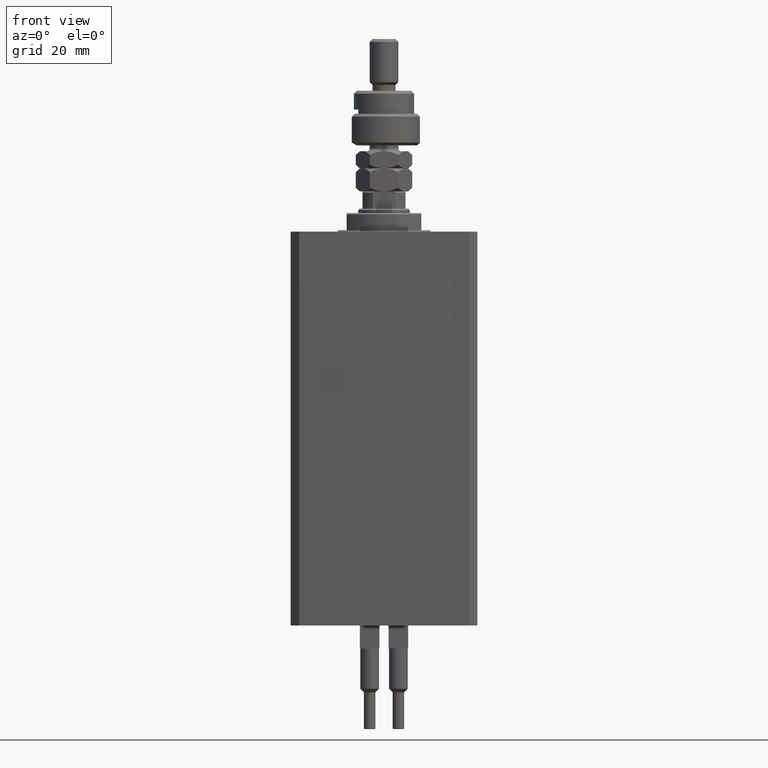
[diagram: clean part render]
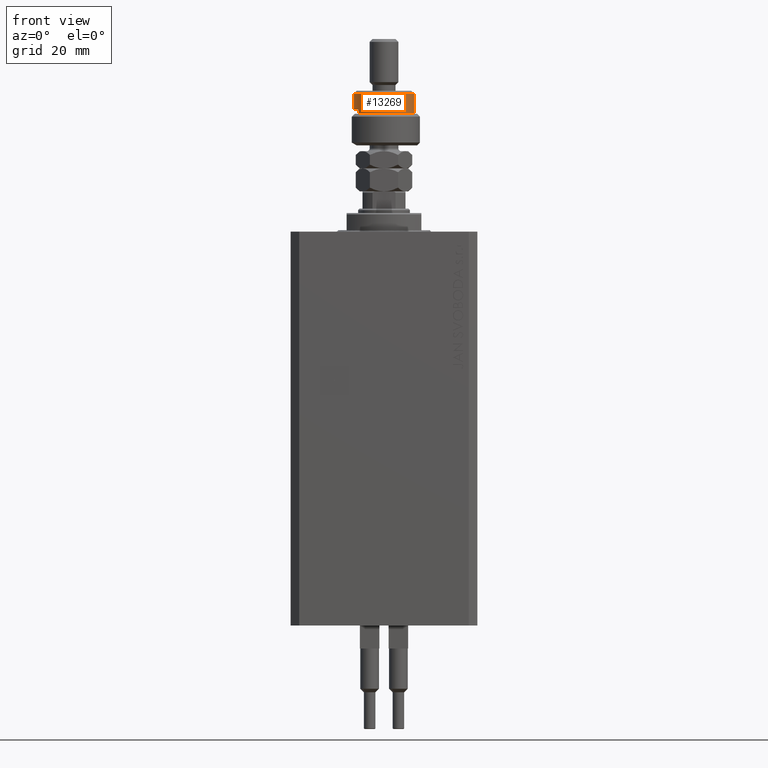
[diagram: same view with one face highlighted and labeled with its STEP entity id]
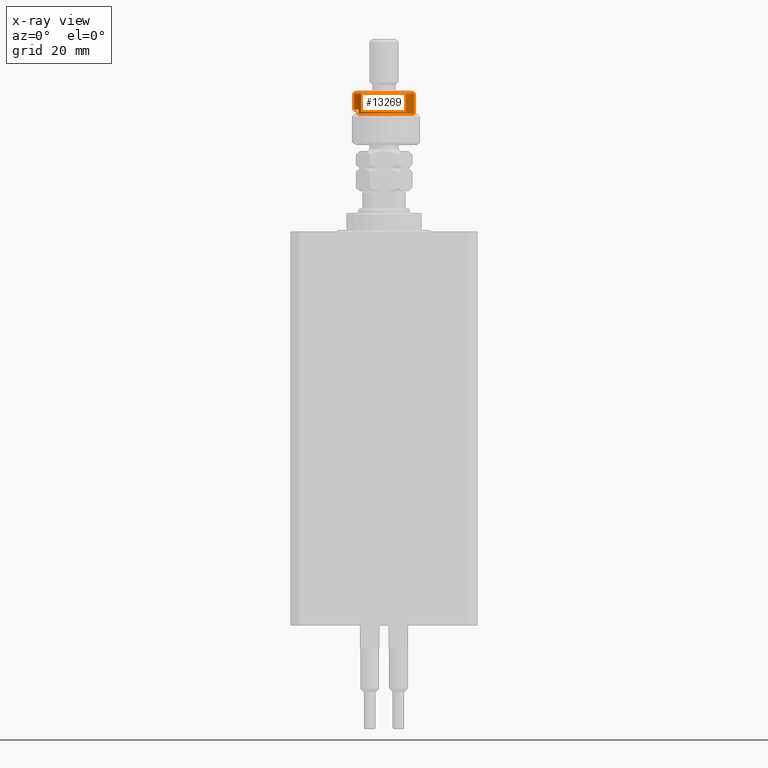
[diagram: x-ray of the same camera — body ghosted, the highlighted face saturated]
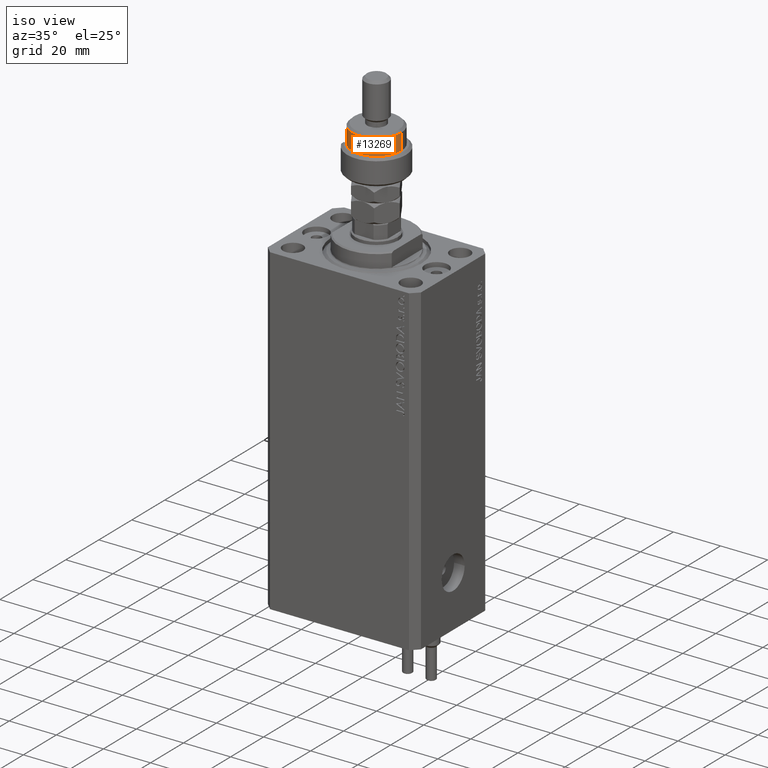
[diagram: same view with one face highlighted and labeled with its STEP entity id]
A machine part, front view. The second image highlights one B-rep face of the part: STEP entity #13269.
The next image is the same camera in x-ray: the body ghosted, the highlighted face saturated — about 0% of this face is hidden behind the body in this view.
A second angle (iso view) of the same face is appended — the face is thin or edge-on in the first view.
In plain terms, the highlighted cylindrical surface (edge-blend (fillet) strip) has radius 10.5 mm, axis along (-0, -0, -1).
Its self-contained STEP definition (entity closure, byte-faithful):
#1364 = EDGE_CURVE ( 'NONE', #11931, #18298, #29788, .T. ) ;
#1395 = CARTESIAN_POINT ( 'NONE',  ( 0.000000000000000000, 0.000000000000000000, 17.99999999999999645 ) ) ;
#1406 = DIRECTION ( 'NONE',  ( -0.000000000000000000, -0.000000000000000000, -1.000000000000000000 ) ) ;
#3277 = CARTESIAN_POINT ( 'NONE',  ( 10.50000000000000000, 1.285879139104720831E-15, 17.99999999999999645 ) ) ;
#4225 = VECTOR ( 'NONE', #20336, 1000.000000000000000 ) ;
#4692 = CARTESIAN_POINT ( 'NONE',  ( -8.944271909999159220, -5.500000000000000000, 11.00000000000000000 ) ) ;
#4777 = DIRECTION ( 'NONE',  ( -1.000000000000000000, 0.000000000000000000, 0.000000000000000000 ) ) ;
#5283 = CARTESIAN_POINT ( 'NONE',  ( 0.000000000000000000, 0.000000000000000000, 19.00000000000000000 ) ) ;
#5617 = ORIENTED_EDGE ( 'NONE', *, *, #16623, .T. ) ;
#5723 = AXIS2_PLACEMENT_3D ( 'NONE', #24765, #39937, #16286 ) ;
#5764 = CARTESIAN_POINT ( 'NONE',  ( -8.944271909999159220, -5.500000000000000000, 19.00000000000000000 ) ) ;
#6688 = DIRECTION ( 'NONE',  ( 1.000000000000000000, 0.000000000000000000, 0.000000000000000000 ) ) ;
#7003 = AXIS2_PLACEMENT_3D ( 'NONE', #1395, #28885, #6688 ) ;
#7990 = ORIENTED_EDGE ( 'NONE', *, *, #1364, .F. ) ;
#8831 = EDGE_CURVE ( 'NONE', #33157, #48582, #43752, .T. ) ;
#9781 = CARTESIAN_POINT ( 'NONE',  ( 10.50000000000000000, 1.285879139104720831E-15, 19.00000000000000000 ) ) ;
#11931 = VERTEX_POINT ( 'NONE', #3277 ) ;
#13191 = DIRECTION ( 'NONE',  ( 1.000000000000000000, 0.000000000000000000, 0.000000000000000000 ) ) ;
#13269 = ADVANCED_FACE ( 'NONE', ( #40747 ), #32510, .T. ) ;
#14553 = EDGE_CURVE ( 'NONE', #42847, #18298, #32211, .T. ) ;
#16286 = DIRECTION ( 'NONE',  ( -1.000000000000000000, 0.000000000000000000, 0.000000000000000000 ) ) ;
#16623 = EDGE_CURVE ( 'NONE', #11931, #33157, #25895, .T. ) ;
#17048 = DIRECTION ( 'NONE',  ( 0.000000000000000000, 0.000000000000000000, 1.000000000000000000 ) ) ;
#18298 = VERTEX_POINT ( 'NONE', #36282 ) ;
#20336 = DIRECTION ( 'NONE',  ( -0.000000000000000000, -0.000000000000000000, -1.000000000000000000 ) ) ;
#20717 = DIRECTION ( 'NONE',  ( -0.000000000000000000, -0.000000000000000000, -1.000000000000000000 ) ) ;
#21102 = VECTOR ( 'NONE', #45480, 1000.000000000000000 ) ;
#22619 = EDGE_LOOP ( 'NONE', ( #7990, #5617, #45714, #24760, #40449, #29294 ) ) ;
#23921 = AXIS2_PLACEMENT_3D ( 'NONE', #5283, #20717, #4777 ) ;
#24760 = ORIENTED_EDGE ( 'NONE', *, *, #29492, .F. ) ;
#24765 = CARTESIAN_POINT ( 'NONE',  ( 0.000000000000000000, 0.000000000000000000, 12.50000000000000000 ) ) ;
#25895 = CIRCLE ( 'NONE', #7003, 10.50000000000000000 ) ;
#28885 = DIRECTION ( 'NONE',  ( 0.000000000000000000, 0.000000000000000000, -1.000000000000000000 ) ) ;
#29294 = ORIENTED_EDGE ( 'NONE', *, *, #14553, .T. ) ;
#29492 = EDGE_CURVE ( 'NONE', #44386, #48582, #33580, .T. ) ;
#29788 = LINE ( 'NONE', #9781, #21102 ) ;
#31361 = EDGE_CURVE ( 'NONE', #44386, #42847, #44835, .T. ) ;
#32211 = CIRCLE ( 'NONE', #45366, 10.50000000000000000 ) ;
#32510 = CYLINDRICAL_SURFACE ( 'NONE', #23921, 10.50000000000000000 ) ;
#33157 = VERTEX_POINT ( 'NONE', #45782 ) ;
#33263 = CARTESIAN_POINT ( 'NONE',  ( -8.944271909999159220, -5.500000000000000000, 12.50000000000000000 ) ) ;
#33580 = CIRCLE ( 'NONE', #5723, 10.50000000000000000 ) ;
#36128 = VECTOR ( 'NONE', #1406, 1000.000000000000000 ) ;
#36282 = CARTESIAN_POINT ( 'NONE',  ( 10.50000000000000000, 1.285879139104720831E-15, 11.00000000000000000 ) ) ;
#37954 = CARTESIAN_POINT ( 'NONE',  ( -10.50000000000000000, 0.000000000000000000, 12.50000000000000000 ) ) ;
#39869 = CARTESIAN_POINT ( 'NONE',  ( -10.50000000000000000, 0.000000000000000000, 19.00000000000000000 ) ) ;
#39937 = DIRECTION ( 'NONE',  ( 0.000000000000000000, 0.000000000000000000, -1.000000000000000000 ) ) ;
#40449 = ORIENTED_EDGE ( 'NONE', *, *, #31361, .T. ) ;
#40747 = FACE_OUTER_BOUND ( 'NONE', #22619, .T. ) ;
#42847 = VERTEX_POINT ( 'NONE', #4692 ) ;
#43541 = CARTESIAN_POINT ( 'NONE',  ( 0.000000000000000000, 0.000000000000000000, 11.00000000000000000 ) ) ;
#43752 = LINE ( 'NONE', #39869, #4225 ) ;
#44386 = VERTEX_POINT ( 'NONE', #33263 ) ;
#44835 = LINE ( 'NONE', #5764, #36128 ) ;
#45366 = AXIS2_PLACEMENT_3D ( 'NONE', #43541, #17048, #13191 ) ;
#45480 = DIRECTION ( 'NONE',  ( -0.000000000000000000, -0.000000000000000000, -1.000000000000000000 ) ) ;
#45714 = ORIENTED_EDGE ( 'NONE', *, *, #8831, .T. ) ;
#45782 = CARTESIAN_POINT ( 'NONE',  ( -10.50000000000000000, 0.000000000000000000, 17.99999999999999645 ) ) ;
#48582 = VERTEX_POINT ( 'NONE', #37954 ) ;